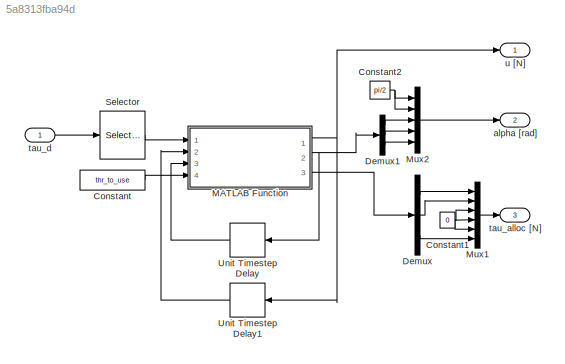
MODEL slx_5a8313fba94d
KIND model
CONFIG AbsTol = auto
CONFIG EnableMultiTasking = off
CONFIG FixedStep = 0.1
CONFIG MaxStep = auto
CONFIG MinStep = auto
CONFIG RelTol = 1e-3
CONFIG SampleTimeConstraint = Unconstrained
CONFIG Solver = FixedStepAuto
CONFIG SolverName = FixedStepAuto
CONFIG StartTime = 0.0
CONFIG StopTime = 10.0
BLOCK [Constant] Constant
  Value = thr_to_use
BLOCK [Constant] Constant1
  Value = 0
BLOCK [Constant] Constant2
  Value = pi/2
BLOCK [Demux] Demux
  DisplayOption = bar
  Outputs = 3
  Ports = [1, 3]
BLOCK [Demux] Demux1
  DisplayOption = bar
  Outputs = 3
  Ports = [1, 3]
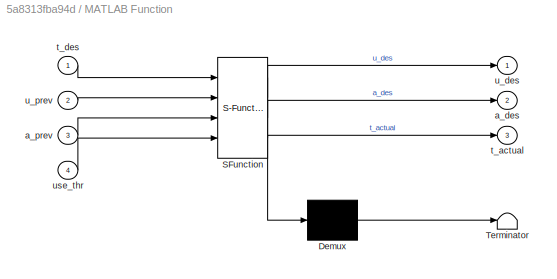
BLOCK [SubSystem] MATLAB Function
  ErrorFcn = Stateflow.Translate.translate
  PermitHierarchicalResolution = ExplicitOnly
  Ports = [4, 3]
  RequestExecContextInheritance = off
  SFBlockType = MATLAB Function
  TreatAsAtomicUnit = on
BLOCK [Demux] MATLAB Function/ Demux 
  Outputs = 1
  Ports = [1, 1]
BLOCK [S-Function] MATLAB Function/ SFunction 
  EnableBusSupport = on
  FunctionName = sf_sfun
  PortCounts = [4 4]
  Ports = [4, 4]
  SFcnIsStateOwnerBlock = off
  SFunctionDeploymentMode = off
  Tag = Stateflow S-Function thrust_allocation 3
BLOCK [Terminator] MATLAB Function/ Terminator 
BLOCK [Outport] MATLAB Function/a_des
  IconDisplay = Port number
  Port = 2
  VectorParamsAs1DForOutWhenUnconnected = on
BLOCK [Inport] MATLAB Function/a_prev
  IconDisplay = Port number
  Port = 3
BLOCK [Outport] MATLAB Function/t_actual
  IconDisplay = Port number
  Port = 3
BLOCK [Inport] MATLAB Function/t_des
  IconDisplay = Port number
BLOCK [Outport] MATLAB Function/u_des
  IconDisplay = Port number
  VectorParamsAs1DForOutWhenUnconnected = on
BLOCK [Inport] MATLAB Function/u_prev
  IconDisplay = Port number
  Port = 2
BLOCK [Inport] MATLAB Function/use_thr
  IconDisplay = Port number
  Port = 4
BLOCK [Mux] Mux1
  DisplayOption = bar
  Inputs = 6
  Ports = [6, 1]
BLOCK [Mux] Mux2
  DisplayOption = bar
  Inputs = 5
  Ports = [5, 1]
BLOCK [Selector] Selector
  IndexOptions = Index vector (dialog)
  Indices = [1 2 6]
  InputPortWidth = 6
  OutputSizes = 1
  Ports = [1, 1]
BLOCK [Delay] Unit Timestep Delay
  DelayLength = 1
  InitialCondition = [0;0;0]
  InputPortMap = u0
  Ports = [1, 1]
BLOCK [Delay] Unit Timestep Delay1
  DelayLength = 1
  InitialCondition = [0;0;0;0;0]
  InputPortMap = u0
  Ports = [1, 1]
BLOCK [Outport] alpha [rad]
  IconDisplay = Port number
  Port = 2
BLOCK [Outport] tau_alloc [N]
  IconDisplay = Port number
  Port = 3
BLOCK [Inport] tau_d
  IconDisplay = Port number
BLOCK [Outport] u [N]
  IconDisplay = Port number
NET Constant1:1 -> Mux1:3, Mux1:4, Mux1:5
NET Constant2:1 -> Mux2:1, Mux2:2
LINE Constant:1 -> MATLAB Function:4
LINE Demux1:1 -> Mux2:3
LINE Demux1:2 -> Mux2:4
LINE Demux1:3 -> Mux2:5
LINE Demux:1 -> Mux1:1
LINE Demux:2 -> Mux1:2
LINE Demux:3 -> Mux1:6
NET MATLAB Function:1 -> Unit Timestep Delay1:1, u [N]:1
NET MATLAB Function:2 -> Demux1:1, Unit Timestep Delay:1
LINE MATLAB Function:3 -> Demux:1
LINE Mux1:1 -> tau_alloc [N]:1
LINE Mux2:1 -> alpha [rad]:1
LINE Selector:1 -> MATLAB Function:1
LINE Unit Timestep Delay1:1 -> MATLAB Function:2
LINE Unit Timestep Delay:1 -> MATLAB Function:3
LINE tau_d:1 -> Selector:1
note: NET lines group one-source signal fan-out (src -> all destinations, sorted); 1:1 wires keep LINE
CHART MATLAB Function states=1 transitions=1
  STATE_LABEL 'eML_blk_kernel()'
  STATE_LABEL 'SCRIPT:\nfunction [u_des, a_des, t_actual] = fcn(t_des, u_prev, a_prev, use_thr)\n\n% Thruster configuration matrix, extended and non-extended\nue_to_t_ = [   0    0   1    0   1     0 1     0;\n               1    1   0    1   0     1 0     1;\n            39.3 35.3   0 31.3  -5 -28.5 5 -28.5 ];\n\nu_to_t_ = @(a) [   0    0      cos(a(1))                   cos(a(2))                  cos(a(3));\n          ...<+3608ch>'
